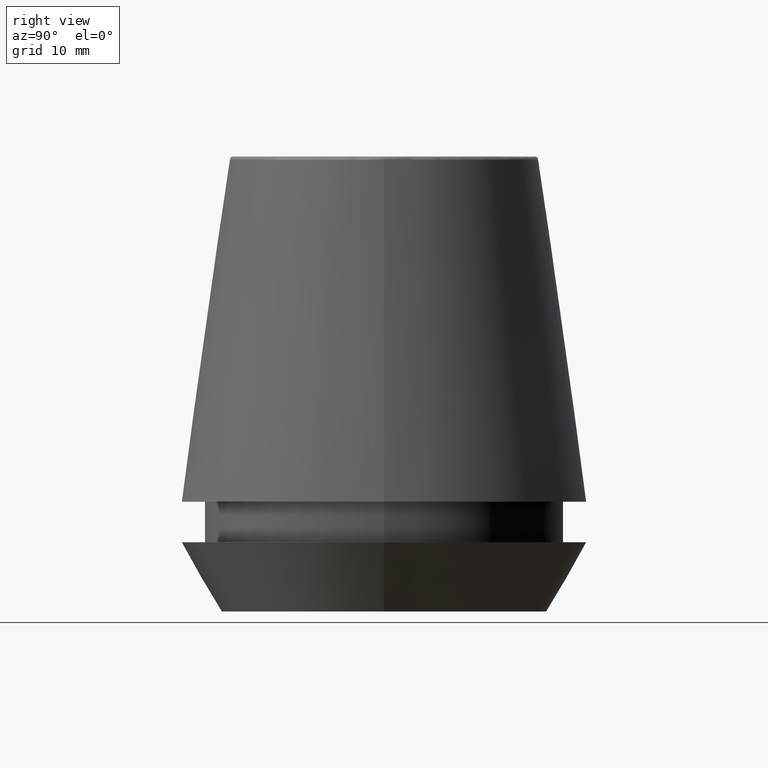
[diagram: clean part render]
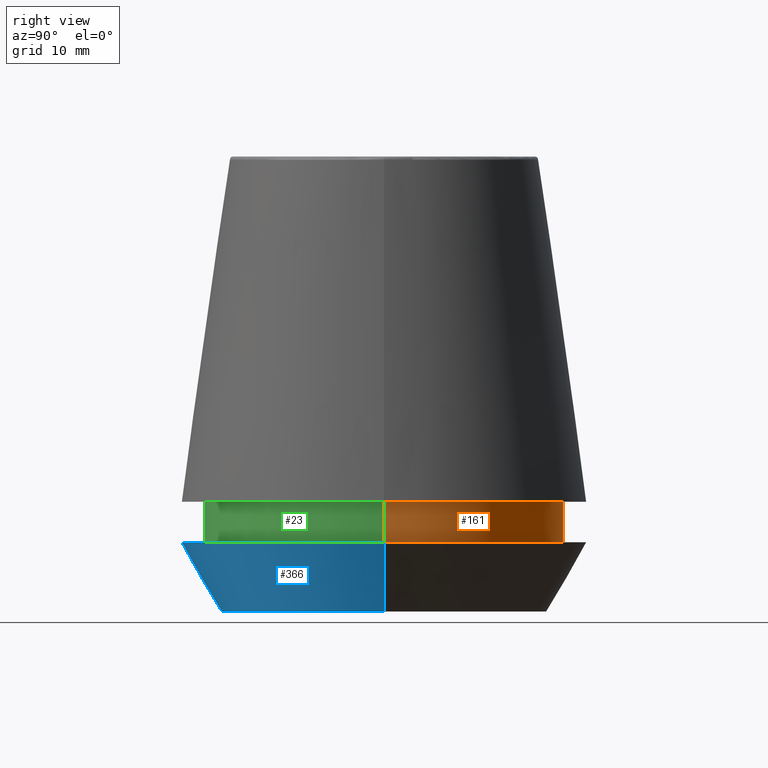
[diagram: same view with three faces highlighted in distinct colors, each labeled with its STEP entity id]
A machine part, right view with three faces highlighted in distinct colors.
Their STEP definitions:

[orange] entity #161 — the highlighted cylindrical surface (partial cylindrical patch) has radius 18.1 mm, axis along (-0, -0, 1).
#21 = EDGE_CURVE ( 'NONE', #325, #309, #322, .T. ) ;
#32 = DIRECTION ( 'NONE',  ( 1.000000000000000000, 0.0000000000000000000, 0.0000000000000000000 ) ) ;
#43 = ORIENTED_EDGE ( 'NONE', *, *, #242, .F. ) ;
#59 = CARTESIAN_POINT ( 'NONE',  ( -18.10000000000000500, 2.216610706456710000E-015, 11.09999999999999800 ) ) ;
#63 = CARTESIAN_POINT ( 'NONE',  ( 18.10000000000000100, 0.0000000000000000000, 6.999999999999999100 ) ) ;
#68 = EDGE_LOOP ( 'NONE', ( #301, #387, #95, #43 ) ) ;
#90 = DIRECTION ( 'NONE',  ( -0.0000000000000000000, -0.0000000000000000000, 1.000000000000000000 ) ) ;
#92 = LINE ( 'NONE', #229, #311 ) ;
#95 = ORIENTED_EDGE ( 'NONE', *, *, #21, .F. ) ;
#112 = CIRCLE ( 'NONE', #222, 18.10000000000000100 ) ;
#113 = DIRECTION ( 'NONE',  ( 1.000000000000000000, 0.0000000000000000000, 0.0000000000000000000 ) ) ;
#132 = DIRECTION ( 'NONE',  ( -0.0000000000000000000, -0.0000000000000000000, 1.000000000000000000 ) ) ;
#136 = VERTEX_POINT ( 'NONE', #160 ) ;
#160 = CARTESIAN_POINT ( 'NONE',  ( -18.10000000000000100, 2.216610706456709600E-015, 6.999999999999999100 ) ) ;
#161 = ADVANCED_FACE ( 'NONE', ( #261 ), #275, .T. ) ;
#169 = DIRECTION ( 'NONE',  ( -0.0000000000000000000, -0.0000000000000000000, 1.000000000000000000 ) ) ;
#188 = CARTESIAN_POINT ( 'NONE',  ( 18.10000000000000500, 0.0000000000000000000, 46.00000000000000000 ) ) ;
#199 = CARTESIAN_POINT ( 'NONE',  ( 0.0000000000000000000, 0.0000000000000000000, 46.00000000000000000 ) ) ;
#222 = AXIS2_PLACEMENT_3D ( 'NONE', #354, #169, #378 ) ;
#229 = CARTESIAN_POINT ( 'NONE',  ( -18.10000000000000500, 2.216610706456710000E-015, 46.00000000000000000 ) ) ;
#237 = EDGE_CURVE ( 'NONE', #363, #136, #112, .T. ) ;
#242 = EDGE_CURVE ( 'NONE', #363, #325, #258, .T. ) ;
#246 = CARTESIAN_POINT ( 'NONE',  ( 0.0000000000000000000, 0.0000000000000000000, 11.09999999999999800 ) ) ;
#258 = LINE ( 'NONE', #188, #280 ) ;
#261 = FACE_OUTER_BOUND ( 'NONE', #68, .T. ) ;
#263 = DIRECTION ( 'NONE',  ( -0.0000000000000000000, -0.0000000000000000000, 1.000000000000000000 ) ) ;
#271 = AXIS2_PLACEMENT_3D ( 'NONE', #246, #346, #32 ) ;
#275 = CYLINDRICAL_SURFACE ( 'NONE', #369, 18.10000000000000500 ) ;
#280 = VECTOR ( 'NONE', #132, 1000.000000000000000 ) ;
#301 = ORIENTED_EDGE ( 'NONE', *, *, #237, .T. ) ;
#309 = VERTEX_POINT ( 'NONE', #59 ) ;
#311 = VECTOR ( 'NONE', #263, 1000.000000000000000 ) ;
#314 = CARTESIAN_POINT ( 'NONE',  ( 18.10000000000000500, 0.0000000000000000000, 11.09999999999999800 ) ) ;
#322 = CIRCLE ( 'NONE', #271, 18.10000000000000500 ) ;
#325 = VERTEX_POINT ( 'NONE', #314 ) ;
#346 = DIRECTION ( 'NONE',  ( -0.0000000000000000000, -0.0000000000000000000, 1.000000000000000000 ) ) ;
#354 = CARTESIAN_POINT ( 'NONE',  ( 0.0000000000000000000, 0.0000000000000000000, 6.999999999999999100 ) ) ;
#358 = EDGE_CURVE ( 'NONE', #136, #309, #92, .T. ) ;
#363 = VERTEX_POINT ( 'NONE', #63 ) ;
#369 = AXIS2_PLACEMENT_3D ( 'NONE', #199, #90, #113 ) ;
#378 = DIRECTION ( 'NONE',  ( 1.000000000000000000, 0.0000000000000000000, 0.0000000000000000000 ) ) ;
#387 = ORIENTED_EDGE ( 'NONE', *, *, #358, .T. ) ;

[blue] entity #366 — the highlighted conical surface has half-angle 30 deg.
#9 = CARTESIAN_POINT ( 'NONE',  ( 16.45854811567268100, 0.0000000000000000000, 0.0000000000000000000 ) ) ;
#29 = VERTEX_POINT ( 'NONE', #348 ) ;
#42 = CARTESIAN_POINT ( 'NONE',  ( -20.50000000000000000, 2.510525938252074100E-015, 7.000000000000006200 ) ) ;
#47 = DIRECTION ( 'NONE',  ( -0.0000000000000000000, -0.0000000000000000000, 1.000000000000000000 ) ) ;
#49 = CARTESIAN_POINT ( 'NONE',  ( 0.0000000000000000000, 0.0000000000000000000, 0.0000000000000000000 ) ) ;
#60 = ORIENTED_EDGE ( 'NONE', *, *, #193, .F. ) ;
#71 = CARTESIAN_POINT ( 'NONE',  ( 16.45854811567268100, 0.0000000000000000000, 0.0000000000000000000 ) ) ;
#74 = ORIENTED_EDGE ( 'NONE', *, *, #244, .T. ) ;
#76 = DIRECTION ( 'NONE',  ( -0.4999999999999941700, 6.123233995736694500E-017, 0.8660254037844420400 ) ) ;
#77 = DIRECTION ( 'NONE',  ( 0.4999999999999941700, 0.0000000000000000000, 0.8660254037844420400 ) ) ;
#102 = DIRECTION ( 'NONE',  ( 1.000000000000000000, 0.0000000000000000000, 0.0000000000000000000 ) ) ;
#114 = VERTEX_POINT ( 'NONE', #71 ) ;
#148 = ORIENTED_EDGE ( 'NONE', *, *, #185, .F. ) ;
#149 = CARTESIAN_POINT ( 'NONE',  ( 0.0000000000000000000, 0.0000000000000000000, 7.000000000000006200 ) ) ;
#171 = CARTESIAN_POINT ( 'NONE',  ( -16.45854811567268100, 2.015590826847124800E-015, 0.0000000000000000000 ) ) ;
#173 = VERTEX_POINT ( 'NONE', #42 ) ;
#185 = EDGE_CURVE ( 'NONE', #173, #191, #257, .T. ) ;
#191 = VERTEX_POINT ( 'NONE', #255 ) ;
#193 = EDGE_CURVE ( 'NONE', #29, #173, #273, .T. ) ;
#227 = CARTESIAN_POINT ( 'NONE',  ( 0.0000000000000000000, 0.0000000000000000000, 0.0000000000000000000 ) ) ;
#244 = EDGE_CURVE ( 'NONE', #29, #114, #253, .T. ) ;
#249 = AXIS2_PLACEMENT_3D ( 'NONE', #49, #357, #367 ) ;
#251 = VECTOR ( 'NONE', #77, 1000.000000000000000 ) ;
#253 = CIRCLE ( 'NONE', #307, 16.45854811567268100 ) ;
#255 = CARTESIAN_POINT ( 'NONE',  ( 20.50000000000000000, 0.0000000000000000000, 7.000000000000006200 ) ) ;
#257 = CIRCLE ( 'NONE', #373, 20.50000000000000000 ) ;
#259 = DIRECTION ( 'NONE',  ( 1.000000000000000000, 0.0000000000000000000, 0.0000000000000000000 ) ) ;
#265 = EDGE_CURVE ( 'NONE', #114, #191, #279, .T. ) ;
#270 = VECTOR ( 'NONE', #76, 1000.000000000000000 ) ;
#273 = LINE ( 'NONE', #171, #270 ) ;
#279 = LINE ( 'NONE', #9, #251 ) ;
#296 = DIRECTION ( 'NONE',  ( -0.0000000000000000000, -0.0000000000000000000, 1.000000000000000000 ) ) ;
#307 = AXIS2_PLACEMENT_3D ( 'NONE', #227, #47, #259 ) ;
#315 = CONICAL_SURFACE ( 'NONE', #249, 16.45854811567268100, 0.5235987755982921500 ) ;
#328 = FACE_OUTER_BOUND ( 'NONE', #343, .T. ) ;
#343 = EDGE_LOOP ( 'NONE', ( #60, #74, #349, #148 ) ) ;
#348 = CARTESIAN_POINT ( 'NONE',  ( -16.45854811567268100, 2.263058382549599700E-015, 0.0000000000000000000 ) ) ;
#349 = ORIENTED_EDGE ( 'NONE', *, *, #265, .T. ) ;
#357 = DIRECTION ( 'NONE',  ( -0.0000000000000000000, -0.0000000000000000000, 1.000000000000000000 ) ) ;
#366 = ADVANCED_FACE ( 'NONE', ( #328 ), #315, .T. ) ;
#367 = DIRECTION ( 'NONE',  ( 1.000000000000000000, 0.0000000000000000000, 0.0000000000000000000 ) ) ;
#373 = AXIS2_PLACEMENT_3D ( 'NONE', #149, #296, #102 ) ;

[green] entity #23 — the highlighted cylindrical surface (partial cylindrical patch) has radius 18.1 mm, axis along (-0, -0, 1).
#2 = DIRECTION ( 'NONE',  ( 1.000000000000000000, 0.0000000000000000000, 0.0000000000000000000 ) ) ;
#11 = ORIENTED_EDGE ( 'NONE', *, *, #358, .F. ) ;
#14 = ORIENTED_EDGE ( 'NONE', *, *, #85, .T. ) ;
#23 = ADVANCED_FACE ( 'NONE', ( #359 ), #295, .T. ) ;
#33 = CARTESIAN_POINT ( 'NONE',  ( 0.0000000000000000000, 0.0000000000000000000, 46.00000000000000000 ) ) ;
#36 = ORIENTED_EDGE ( 'NONE', *, *, #242, .T. ) ;
#40 = DIRECTION ( 'NONE',  ( -0.0000000000000000000, -0.0000000000000000000, 1.000000000000000000 ) ) ;
#55 = ORIENTED_EDGE ( 'NONE', *, *, #89, .F. ) ;
#59 = CARTESIAN_POINT ( 'NONE',  ( -18.10000000000000500, 2.216610706456710000E-015, 11.09999999999999800 ) ) ;
#63 = CARTESIAN_POINT ( 'NONE',  ( 18.10000000000000100, 0.0000000000000000000, 6.999999999999999100 ) ) ;
#85 = EDGE_CURVE ( 'NONE', #136, #363, #385, .T. ) ;
#89 = EDGE_CURVE ( 'NONE', #309, #325, #288, .T. ) ;
#92 = LINE ( 'NONE', #229, #311 ) ;
#98 = DIRECTION ( 'NONE',  ( -0.0000000000000000000, -0.0000000000000000000, 1.000000000000000000 ) ) ;
#101 = DIRECTION ( 'NONE',  ( -0.0000000000000000000, -0.0000000000000000000, 1.000000000000000000 ) ) ;
#115 = AXIS2_PLACEMENT_3D ( 'NONE', #224, #40, #2 ) ;
#132 = DIRECTION ( 'NONE',  ( -0.0000000000000000000, -0.0000000000000000000, 1.000000000000000000 ) ) ;
#136 = VERTEX_POINT ( 'NONE', #160 ) ;
#151 = AXIS2_PLACEMENT_3D ( 'NONE', #321, #101, #294 ) ;
#160 = CARTESIAN_POINT ( 'NONE',  ( -18.10000000000000100, 2.216610706456709600E-015, 6.999999999999999100 ) ) ;
#188 = CARTESIAN_POINT ( 'NONE',  ( 18.10000000000000500, 0.0000000000000000000, 46.00000000000000000 ) ) ;
#224 = CARTESIAN_POINT ( 'NONE',  ( 0.0000000000000000000, 0.0000000000000000000, 11.09999999999999800 ) ) ;
#229 = CARTESIAN_POINT ( 'NONE',  ( -18.10000000000000500, 2.216610706456710000E-015, 46.00000000000000000 ) ) ;
#242 = EDGE_CURVE ( 'NONE', #363, #325, #258, .T. ) ;
#258 = LINE ( 'NONE', #188, #280 ) ;
#263 = DIRECTION ( 'NONE',  ( -0.0000000000000000000, -0.0000000000000000000, 1.000000000000000000 ) ) ;
#280 = VECTOR ( 'NONE', #132, 1000.000000000000000 ) ;
#288 = CIRCLE ( 'NONE', #115, 18.10000000000000500 ) ;
#294 = DIRECTION ( 'NONE',  ( 1.000000000000000000, 0.0000000000000000000, 0.0000000000000000000 ) ) ;
#295 = CYLINDRICAL_SURFACE ( 'NONE', #319, 18.10000000000000500 ) ;
#309 = VERTEX_POINT ( 'NONE', #59 ) ;
#311 = VECTOR ( 'NONE', #263, 1000.000000000000000 ) ;
#314 = CARTESIAN_POINT ( 'NONE',  ( 18.10000000000000500, 0.0000000000000000000, 11.09999999999999800 ) ) ;
#319 = AXIS2_PLACEMENT_3D ( 'NONE', #33, #98, #345 ) ;
#321 = CARTESIAN_POINT ( 'NONE',  ( 0.0000000000000000000, 0.0000000000000000000, 6.999999999999999100 ) ) ;
#325 = VERTEX_POINT ( 'NONE', #314 ) ;
#339 = EDGE_LOOP ( 'NONE', ( #11, #14, #36, #55 ) ) ;
#345 = DIRECTION ( 'NONE',  ( 1.000000000000000000, 0.0000000000000000000, 0.0000000000000000000 ) ) ;
#358 = EDGE_CURVE ( 'NONE', #136, #309, #92, .T. ) ;
#359 = FACE_OUTER_BOUND ( 'NONE', #339, .T. ) ;
#363 = VERTEX_POINT ( 'NONE', #63 ) ;
#385 = CIRCLE ( 'NONE', #151, 18.10000000000000100 ) ;